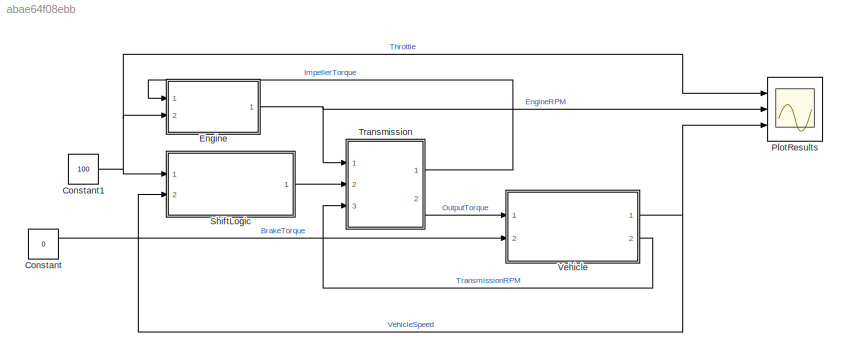
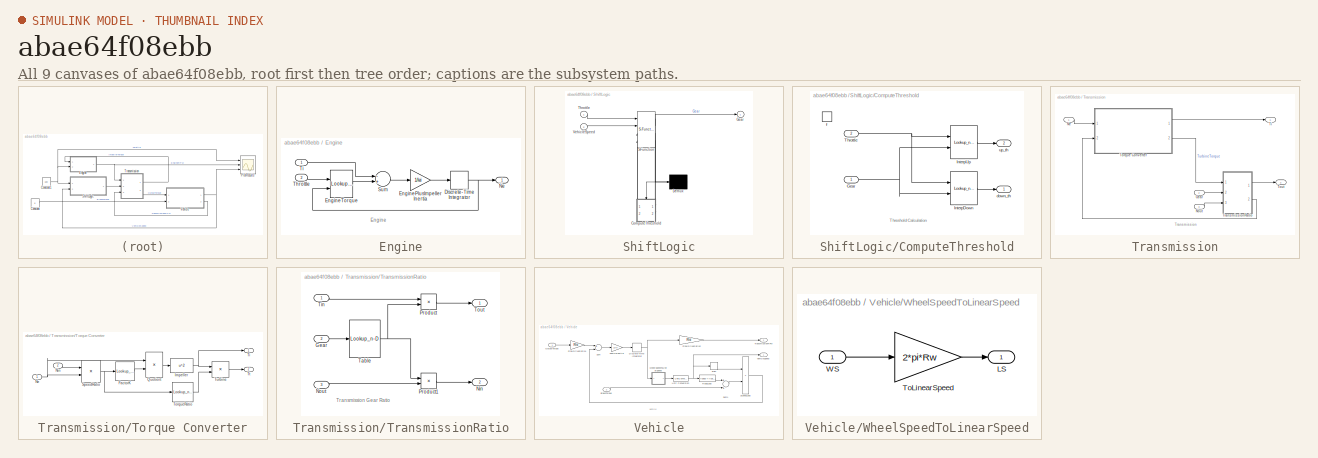
[diagram: thumbnail index - all 9 canvases of the model, root first then tree order]
MODEL slx_abae64f08ebb
KIND model
CONFIG AbsTol = auto
CONFIG EnableMultiTasking = off
CONFIG FixedStep = 0.04
CONFIG InitFcn = load('trqConv.mat')
CONFIG MaxStep = auto
CONFIG MinStep = auto
CONFIG RelTol = 1e-3
CONFIG SampleTimeConstraint = Unconstrained
CONFIG Solver = FixedStepDiscrete
CONFIG SolverName = FixedStepDiscrete
CONFIG StartTime = 0.0
CONFIG StopTime = 10.0
WORKSPACE source: MAT-file member
WORKSPACE CONVERTER_DATA = [0 0.1 0.2 0.3 0.4 0.5 0.6 0.7 0.8 0.81 0.82 0.83 ... (63 elements, 21x3)]
BLOCK [Constant] Constant
  Value = 0
BLOCK [Constant] Constant1
  Value = 100
BLOCK [SubSystem] Engine
  Ports = [2, 1]
  RequestExecContextInheritance = off
BLOCK [DiscreteIntegrator] Engine/Discrete-Time Integrator
  ICPrevOutput = DiscIntNeverNeededParam
  ICPrevScaledInput = DiscIntNeverNeededParam
  InitialCondition = 1000
  InitialConditionSetting = Auto
  LimitOutput = on
  LowerSaturationLimit = 600
  Ports = [1, 1]
  SampleTime = -1
  UpperSaturationLimit = 6000
BLOCK [Gain] Engine/EnginePlusImpellerInertia
  Gain = 1/Iei
BLOCK [Lookup_n-D] Engine/EngineTorque
  BreakpointsForDimension1 = TH_VEC
  BreakpointsForDimension2 = NE_VEC
  Ports = [2, 1]
  Table = EMAP
BLOCK [Outport] Engine/Ne
  IconDisplay = Port number
  Unit = rpm
BLOCK [Sum] Engine/Sum
  Inputs = -+
  Ports = [2, 1]
BLOCK [Inport] Engine/Throttle
  IconDisplay = Port number
  Port = 2
  Unit = %
BLOCK [Inport] Engine/Ti
  IconDisplay = Port number
  Unit = ft*lbf@torque
BLOCK [Scope] PlotResults
  Floating = off
  NumInputPorts = 3
  Ports = [3]
  ScopeSpecificationString = Simulink.scopes.TimeScopeBlockCfg('CurrentConfiguration', extmgr.ConfigurationSet(extmgr.Configuration('Core','General UI',true),extmgr.Configuration('Core','Source UI',true),extmgr.Configuration('Sources','WiredSimulink',true,'DataLoggingSaveFormat','StructureWithTime','DataLoggingDecimation','1','DataLoggingDecimateData',true),extmgr.Configuration('Visuals','Time Domain',true,'TimeAxisLabels','A...<+3072ch>
BLOCK [SubSystem] ShiftLogic
  ErrorFcn = Stateflow.Translate.translate
  PermitHierarchicalResolution = ExplicitOnly
  Ports = [2, 1]
  RequestExecContextInheritance = off
  SFBlockType = Chart
  TreatAsAtomicUnit = on
BLOCK [Demux] ShiftLogic/ Demux 
  Outputs = 1
  Ports = [1, 1]
BLOCK [S-Function] ShiftLogic/ SFunction 
  EnableBusSupport = on
  FunctionName = sf_sfun
  Parameters = TWAIT
  PortCounts = [4 4]
  Ports = [4, 4]
  SFcnIsStateOwnerBlock = off
  SFunctionDeploymentMode = off
  Tag = Stateflow S-Function camsil1 1
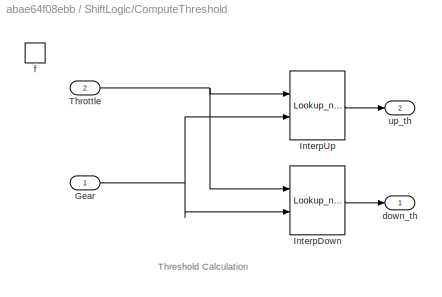
BLOCK [SubSystem] ShiftLogic/ComputeThreshold
  Ports = [2, 2, 0, 1]
  PreDeleteFcn = Stateflow.SLINSF.SimulinkMan.removePreDeleteFcn
  RequestExecContextInheritance = off
  UndoDeleteFcn = Stateflow.SLINSF.SimulinkMan.restorePreDeleteFcn
BLOCK [Inport] ShiftLogic/ComputeThreshold/Gear
  IconDisplay = Port number
BLOCK [Lookup_n-D] ShiftLogic/ComputeThreshold/InterpDown
  BreakpointsForDimension1 = DOWN_TH_BP
  BreakpointsForDimension2 = [1:4]
  InputSameDT = off
  LockScale = on
  OutDataTypeStr = double
  Ports = [2, 1]
  Table = DOWN_TABLE
BLOCK [Lookup_n-D] ShiftLogic/ComputeThreshold/InterpUp
  BreakpointsForDimension1 = UP_TH_BP
  BreakpointsForDimension2 = [1:4]
  InputSameDT = off
  LockScale = on
  OutDataTypeStr = double
  Ports = [2, 1]
  Table = UP_TABLE
BLOCK [Inport] ShiftLogic/ComputeThreshold/Throttle
  IconDisplay = Port number
  Port = 2
BLOCK [Outport] ShiftLogic/ComputeThreshold/down_th
  IconDisplay = Port number
  InitialOutput = 0
BLOCK [TriggerPort] ShiftLogic/ComputeThreshold/f
  CopyFcn = Stateflow.SLINSF.SimulinkMan.removeBlockPreDeleteFcn
  Ports = []
  PreDeleteFcn = Stateflow.SLINSF.SimulinkMan.unsafePredeleteFcn
  StatesWhenEnabling = held
  TriggerType = function-call
  VariantControl = (inherit)
BLOCK [Outport] ShiftLogic/ComputeThreshold/up_th
  IconDisplay = Port number
  InitialOutput = 0
  Port = 2
BLOCK [Outport] ShiftLogic/Gear
  IconDisplay = Port number
BLOCK [Inport] ShiftLogic/Throttle
  IconDisplay = Port number
BLOCK [Inport] ShiftLogic/VehicleSpeed
  IconDisplay = Port number
  Port = 2
BLOCK [SubSystem] Transmission
  Ports = [3, 2]
  RequestExecContextInheritance = off
BLOCK [Inport] Transmission/Gear
  IconDisplay = Port number
  Port = 2
  Unit = 1
BLOCK [Inport] Transmission/Ne
  IconDisplay = Port number
  Unit = rpm
BLOCK [Inport] Transmission/Nout
  IconDisplay = Port number
  Port = 3
  Unit = rpm
BLOCK [Outport] Transmission/Ti
  IconDisplay = Port number
  Unit = ft*lbf@torque
BLOCK [SubSystem] Transmission/Torque Converter
  Ports = [2, 2]
  RequestExecContextInheritance = off
BLOCK [Lookup_n-D] Transmission/Torque Converter/FactorK
  BreakpointsForDimension1 = speedratio
  NumberOfTableDimensions = 1
  Ports = [1, 1]
  SaturateOnIntegerOverflow = on
  Table = Kfactor
BLOCK [Fcn] Transmission/Torque Converter/Impeller
  Expr = u^2
BLOCK [Inport] Transmission/Torque Converter/Ne
  IconDisplay = Port number
BLOCK [Inport] Transmission/Torque Converter/Nin
  IconDisplay = Port number
  Port = 2
BLOCK [Product] Transmission/Torque Converter/Quotient
  Inputs = */
  Ports = [2, 1]
  RndMeth = Floor
BLOCK [Product] Transmission/Torque Converter/SpeedRatio
  Inputs = */
  Ports = [2, 1]
  RndMeth = Floor
BLOCK [Outport] Transmission/Torque Converter/Ti
  IconDisplay = Port number
BLOCK [Lookup_n-D] Transmission/Torque Converter/TorqueRatio
  BreakpointsForDimension1 = speedratio
  NumberOfTableDimensions = 1
  Ports = [1, 1]
  SaturateOnIntegerOverflow = on
  Table = Torkratio
BLOCK [Outport] Transmission/Torque Converter/Tt
  IconDisplay = Port number
  Port = 2
BLOCK [Product] Transmission/Torque Converter/Turbine
  Ports = [2, 1]
  RndMeth = Floor
BLOCK [Outport] Transmission/Tout
  IconDisplay = Port number
  Port = 2
  Unit = ft*lbf@torque
BLOCK [SubSystem] Transmission/TransmissionRatio
  Ports = [3, 2]
  RequestExecContextInheritance = off
BLOCK [Inport] Transmission/TransmissionRatio/Gear
  IconDisplay = Port number
  Port = 2
  Unit = 1
BLOCK [Outport] Transmission/TransmissionRatio/Nin
  IconDisplay = Port number
  Port = 2
  Unit = rpm
BLOCK [Inport] Transmission/TransmissionRatio/Nout
  IconDisplay = Port number
  Port = 3
  Unit = rpm
BLOCK [Product] Transmission/TransmissionRatio/Product
  Ports = [2, 1]
  RndMeth = Floor
BLOCK [Product] Transmission/TransmissionRatio/Product1
  Ports = [2, 1]
  RndMeth = Floor
BLOCK [Lookup_n-D] Transmission/TransmissionRatio/Table
  BreakpointsForDimension1 = [1 2 3 4]
  LockScale = on
  NumberOfTableDimensions = 1
  OutDataTypeStr = double
  Ports = [1, 1]
  SaturateOnIntegerOverflow = on
  Table = [2.393 1.450 1.000 0.677]
BLOCK [Inport] Transmission/TransmissionRatio/Tin
  IconDisplay = Port number
  Unit = ft*lbf@torque
BLOCK [Outport] Transmission/TransmissionRatio/Tout
  IconDisplay = Port number
  Unit = ft*lbf@torque
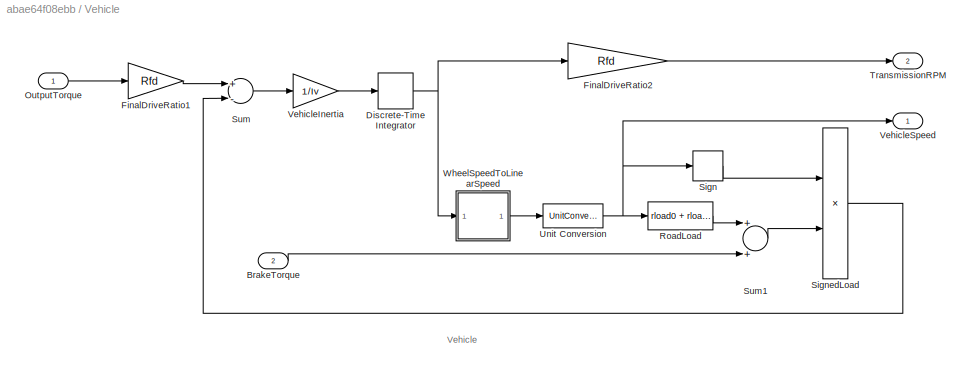
BLOCK [SubSystem] Vehicle
  Ports = [2, 2]
  RequestExecContextInheritance = off
  ShowPortLabels = none
BLOCK [Inport] Vehicle/BrakeTorque
  IconDisplay = Port number
  Port = 2
  Unit = ft*lbf@torque
BLOCK [DiscreteIntegrator] Vehicle/Discrete-Time Integrator
  ICPrevOutput = DiscIntNeverNeededParam
  ICPrevScaledInput = DiscIntNeverNeededParam
  InitialCondition = N20/Rfd
  InitialConditionSetting = Auto
  Ports = [1, 1]
  SampleTime = -1
BLOCK [Gain] Vehicle/FinalDriveRatio1
  Gain = Rfd
BLOCK [Gain] Vehicle/FinalDriveRatio2
  Gain = Rfd
BLOCK [Inport] Vehicle/OutputTorque
  IconDisplay = Port number
  Unit = ft*lbf@torque
BLOCK [Fcn] Vehicle/RoadLoad
  Expr = rload0 + rload2*u^2
BLOCK [Signum] Vehicle/Sign
BLOCK [Product] Vehicle/SignedLoad
  Ports = [2, 1]
  RndMeth = Floor
BLOCK [Sum] Vehicle/Sum
  Inputs = +-
  Ports = [2, 1]
BLOCK [Sum] Vehicle/Sum1
  Ports = [2, 1]
BLOCK [Outport] Vehicle/TransmissionRPM
  IconDisplay = Port number
  Port = 2
  Unit = rpm
BLOCK [UnitConversion] Vehicle/Unit Conversion
BLOCK [Gain] Vehicle/VehicleInertia
  Gain = 1/Iv
BLOCK [Outport] Vehicle/VehicleSpeed
  IconDisplay = Port number
  Unit = mph
BLOCK [SubSystem] Vehicle/WheelSpeedToLinearSpeed
  Ports = [1, 1]
  RequestExecContextInheritance = off
BLOCK [Outport] Vehicle/WheelSpeedToLinearSpeed/LS
  IconDisplay = Port number
  Unit = ft/min
BLOCK [Gain] Vehicle/WheelSpeedToLinearSpeed/ToLinearSpeed
  Gain = 2*pi*Rw
BLOCK [Inport] Vehicle/WheelSpeedToLinearSpeed/WS
  IconDisplay = Port number
  Unit = rpm
ANNOTATION Engine: Engine
ANNOTATION ShiftLogic/ComputeThreshold: Threshold Calculation
ANNOTATION Transmission: Transmission
ANNOTATION Transmission/TransmissionRatio: Transmission Gear Ratio
ANNOTATION Vehicle: Vehicle
NET Constant1:1 -> Engine:2, PlotResults:1, ShiftLogic:1
LINE Constant:1 -> Vehicle:2
NET Engine/Discrete-Time Integrator:1 -> Engine/EngineTorque:2, Engine/Ne:1
LINE Engine/EnginePlusImpellerInertia:1 -> Engine/Discrete-Time Integrator:1
LINE Engine/EngineTorque:1 -> Engine/Sum:2
LINE Engine/Sum:1 -> Engine/EnginePlusImpellerInertia:1
LINE Engine/Throttle:1 -> Engine/EngineTorque:1
LINE Engine/Ti:1 -> Engine/Sum:1
NET Engine:1 -> PlotResults:2, Transmission:1
LINE ShiftLogic:1 -> Transmission:2
LINE Transmission/Gear:1 -> Transmission/TransmissionRatio:2
LINE Transmission/Ne:1 -> Transmission/Torque Converter:1
LINE Transmission/Nout:1 -> Transmission/TransmissionRatio:3
LINE Transmission/Torque Converter/FactorK:1 -> Transmission/Torque Converter/Quotient:2
NET Transmission/Torque Converter/Impeller:1 -> Transmission/Torque Converter/Ti:1, Transmission/Torque Converter/Turbine:1
NET Transmission/Torque Converter/Ne:1 -> Transmission/Torque Converter/Quotient:1, Transmission/Torque Converter/SpeedRatio:2
LINE Transmission/Torque Converter/Nin:1 -> Transmission/Torque Converter/SpeedRatio:1
LINE Transmission/Torque Converter/Quotient:1 -> Transmission/Torque Converter/Impeller:1
NET Transmission/Torque Converter/SpeedRatio:1 -> Transmission/Torque Converter/FactorK:1, Transmission/Torque Converter/TorqueRatio:1
LINE Transmission/Torque Converter/TorqueRatio:1 -> Transmission/Torque Converter/Turbine:2
LINE Transmission/Torque Converter/Turbine:1 -> Transmission/Torque Converter/Tt:1
LINE Transmission/Torque Converter:1 -> Transmission/Ti:1
LINE Transmission/Torque Converter:2 -> Transmission/TransmissionRatio:1
LINE Transmission/TransmissionRatio/Gear:1 -> Transmission/TransmissionRatio/Table:1
LINE Transmission/TransmissionRatio/Nout:1 -> Transmission/TransmissionRatio/Product1:2
LINE Transmission/TransmissionRatio/Product1:1 -> Transmission/TransmissionRatio/Nin:1
LINE Transmission/TransmissionRatio/Product:1 -> Transmission/TransmissionRatio/Tout:1
NET Transmission/TransmissionRatio/Table:1 -> Transmission/TransmissionRatio/Product1:1, Transmission/TransmissionRatio/Product:2
LINE Transmission/TransmissionRatio/Tin:1 -> Transmission/TransmissionRatio/Product:1
LINE Transmission/TransmissionRatio:1 -> Transmission/Tout:1
LINE Transmission/TransmissionRatio:2 -> Transmission/Torque Converter:2
LINE Transmission:1 -> Engine:1
LINE Transmission:2 -> Vehicle:1
LINE Vehicle/BrakeTorque:1 -> Vehicle/Sum1:2
NET Vehicle/Discrete-Time Integrator:1 -> Vehicle/FinalDriveRatio2:1, Vehicle/WheelSpeedToLinearSpeed:1
LINE Vehicle/FinalDriveRatio1:1 -> Vehicle/Sum:1
LINE Vehicle/FinalDriveRatio2:1 -> Vehicle/TransmissionRPM:1
LINE Vehicle/OutputTorque:1 -> Vehicle/FinalDriveRatio1:1
LINE Vehicle/RoadLoad:1 -> Vehicle/Sum1:1
LINE Vehicle/Sign:1 -> Vehicle/SignedLoad:1
LINE Vehicle/SignedLoad:1 -> Vehicle/Sum:2
LINE Vehicle/Sum1:1 -> Vehicle/SignedLoad:2
LINE Vehicle/Sum:1 -> Vehicle/VehicleInertia:1
NET Vehicle/Unit Conversion:1 -> Vehicle/RoadLoad:1, Vehicle/Sign:1, Vehicle/VehicleSpeed:1
LINE Vehicle/VehicleInertia:1 -> Vehicle/Discrete-Time Integrator:1
LINE Vehicle/WheelSpeedToLinearSpeed/ToLinearSpeed:1 -> Vehicle/WheelSpeedToLinearSpeed/LS:1
LINE Vehicle/WheelSpeedToLinearSpeed/WS:1 -> Vehicle/WheelSpeedToLinearSpeed/ToLinearSpeed:1
LINE Vehicle/WheelSpeedToLinearSpeed:1 -> Vehicle/Unit Conversion:1
NET Vehicle:1 -> PlotResults:3, ShiftLogic:2
LINE Vehicle:2 -> Transmission:3
note: NET lines group one-source signal fan-out (src -> all destinations, sorted); 1:1 wires keep LINE
CHART ShiftLogic states=10 transitions=14
  STATE_LABEL 'gear_state'
  STATE_LABEL 'first\nentry:\nGear = 1;'
  STATE_LABEL 'second\nentry:\nGear = 2;'
  STATE_LABEL 'third\nentry:\nGear = 3;'
  STATE_LABEL 'fourth\nentry:\nGear = 4;'
  STATE_LABEL 'UP'
  STATE_LABEL 'UP'
  STATE_LABEL 'UP'
  STATE_LABEL 'DOWN'
  STATE_LABEL 'DOWN'
  STATE_LABEL 'DOWN'
  STATE_LABEL 'first\nentry:\nGear = 1;'
  STATE_LABEL 'second\nentry:\nGear = 2;'
  STATE_LABEL 'third\nentry:\nGear = 3;'
  STATE_LABEL 'fourth\nentry:\nGear = 4;'
  STATE_LABEL 'selection_state\nduring:\n[down_th, up_th] = ComputeThreshold(Gear,Throttle);'
  STATE_LABEL 'steady_state'
  STATE_LABEL 'upshifting'
  STATE_LABEL 'downshifting'
  STATE_LABEL '[VehicleSpeed > up_th]'
  STATE_LABEL '[VehicleSpeed < down_th]'
  STATE_LABEL 'after(TWAIT,tick)\n[VehicleSpeed <= down_th]\n{gear_state.DOWN}'
  STATE_LABEL '[VehicleSpeed > down_th]'
  STATE_LABEL 'after(TWAIT,tick)\n[VehicleSpeed >= up_th]\n{gear_state.UP}'
  STATE_LABEL '[VehicleSpeed < up_th]'
  STATE_LABEL 'steady_state'
  STATE_LABEL 'upshifting'
  STATE_LABEL 'downshifting'
  STATE_LABEL '[down_th,up_th] = ComputeThreshold(Gear,Throttle)'
